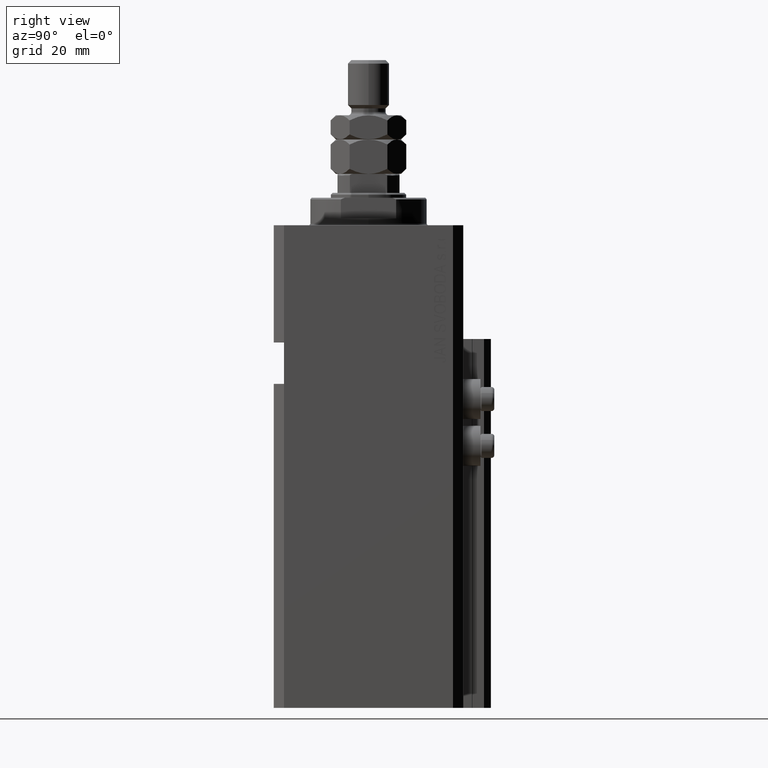
[diagram: clean part render]
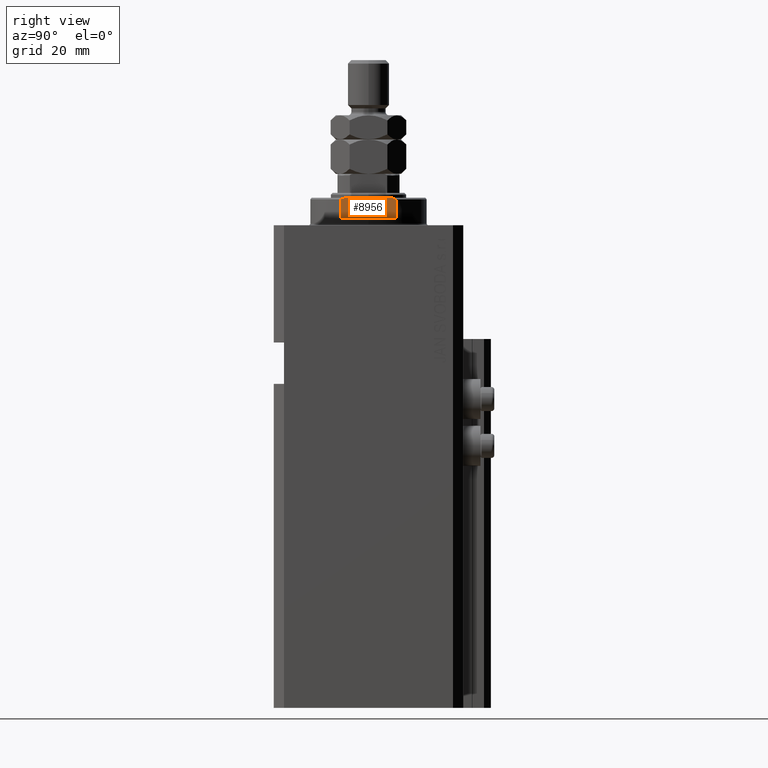
[diagram: same view with one face highlighted and labeled with its STEP entity id]
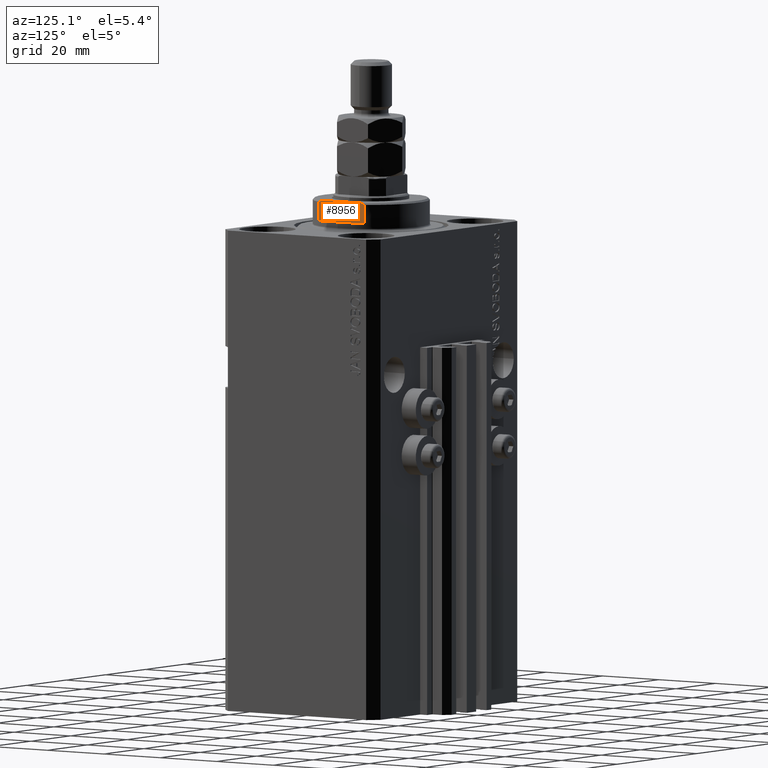
[diagram: same view with one face highlighted and labeled with its STEP entity id]
A machine part, right view. The second image highlights one B-rep face of the part: STEP entity #8956.
A second angle (auxiliary view) of the same face is appended — the face is thin or edge-on in the first view.
In plain terms, the highlighted planar face has unit normal (-1, 0, 0).
Its self-contained STEP definition (entity closure, byte-faithful):
#849 = VECTOR ( 'NONE', #45994, 1000.000000000000000 ) ;
#1165 = CARTESIAN_POINT ( 'NONE',  ( -15.00000000000000000, 7.628315461082486593, -7.674910371255312391 ) ) ;
#3907 = ORIENTED_EDGE ( 'NONE', *, *, #44734, .F. ) ;
#4105 = CARTESIAN_POINT ( 'NONE',  ( -15.00000000000000000, -42.42640687119285303, -2.000000000000000000 ) ) ;
#4264 = DIRECTION ( 'NONE',  ( -0.000000000000000000, -1.000000000000000000, -0.000000000000000000 ) ) ;
#7397 = VERTEX_POINT ( 'NONE', #42785 ) ;
#7530 = PLANE ( 'NONE',  #34820 ) ;
#7675 = VERTEX_POINT ( 'NONE', #15199 ) ;
#8956 = ADVANCED_FACE ( 'NONE', ( #33730 ), #7530, .F. ) ;
#8977 = DIRECTION ( 'NONE',  ( 0.000000000000000000, 0.000000000000000000, -1.000000000000000000 ) ) ;
#9277 = LINE ( 'NONE', #46240, #849 ) ;
#11673 = DIRECTION ( 'NONE',  ( 0.000000000000000000, 0.000000000000000000, -1.000000000000000000 ) ) ;
#12678 = ORIENTED_EDGE ( 'NONE', *, *, #19427, .T. ) ;
#13994 = CARTESIAN_POINT ( 'NONE',  ( -15.00000000000000000, 8.000000000000001776, -7.500000000000013323 ) ) ;
#14379 = CARTESIAN_POINT ( 'NONE',  ( -15.00000000000000000, -42.42640687119285303, -8.000000000000000000 ) ) ;
#14672 = CARTESIAN_POINT ( 'NONE',  ( -14.99999999999999645, 6.873863542433781504, -8.000000000000000000 ) ) ;
#14898 = CARTESIAN_POINT ( 'NONE',  ( -15.00000000000000000, -7.629305121525818301, -7.674444648693746984 ) ) ;
#15199 = CARTESIAN_POINT ( 'NONE',  ( -15.00000000000000000, -6.873863542433783280, -8.000000000000000000 ) ) ;
#16293 = CARTESIAN_POINT ( 'NONE',  ( -14.99999999999999645, 8.000000000000003553, -2.000000000000000000 ) ) ;
#18557 = EDGE_LOOP ( 'NONE', ( #28034, #39224, #12678, #3907, #42310, #43860 ) ) ;
#18863 = VERTEX_POINT ( 'NONE', #30510 ) ;
#18954 = LINE ( 'NONE', #33419, #28921 ) ;
#19427 = EDGE_CURVE ( 'NONE', #7675, #18863, #21248, .T. ) ;
#21248 = B_SPLINE_CURVE_WITH_KNOTS ( 'NONE', 3,
 ( #44527, #33288, #14898, #36712 ),
 .UNSPECIFIED., .F., .F.,
 ( 4, 4 ),
 ( 0.04875332532859062012, 0.04998905627745663799 ),
 .UNSPECIFIED. ) ;
#21727 = LINE ( 'NONE', #14379, #44094 ) ;
#21918 = VECTOR ( 'NONE', #8977, 1000.000000000000000 ) ;
#25616 = EDGE_CURVE ( 'NONE', #27973, #35973, #37245, .T. ) ;
#27588 = CARTESIAN_POINT ( 'NONE',  ( -15.00000000000000000, 8.000000000000001776, -7.500000000000013323 ) ) ;
#27973 = VERTEX_POINT ( 'NONE', #13994 ) ;
#28034 = ORIENTED_EDGE ( 'NONE', *, *, #25616, .T. ) ;
#28921 = VECTOR ( 'NONE', #4264, 1000.000000000000000 ) ;
#30510 = CARTESIAN_POINT ( 'NONE',  ( -15.00000000000000000, -8.000000000000001776, -7.500000000000014211 ) ) ;
#31760 = CARTESIAN_POINT ( 'NONE',  ( -15.00000000000000000, 7.253126193285940104, -7.842000017654667587 ) ) ;
#32797 = EDGE_CURVE ( 'NONE', #35973, #7675, #21727, .T. ) ;
#33288 = CARTESIAN_POINT ( 'NONE',  ( -15.00000000000000000, -7.254193676168139149, -7.841555306644512058 ) ) ;
#33419 = CARTESIAN_POINT ( 'NONE',  ( -15.00000000000000000, -42.42640687119285303, -2.000000000000000000 ) ) ;
#33730 = FACE_OUTER_BOUND ( 'NONE', #18557, .T. ) ;
#34820 = AXIS2_PLACEMENT_3D ( 'NONE', #4105, #37393, #11673 ) ;
#35430 = CARTESIAN_POINT ( 'NONE',  ( -14.99999999999999645, 6.873863542433781504, -8.000000000000000000 ) ) ;
#35973 = VERTEX_POINT ( 'NONE', #14672 ) ;
#36669 = DIRECTION ( 'NONE',  ( -0.000000000000000000, -1.000000000000000000, -0.000000000000000000 ) ) ;
#36712 = CARTESIAN_POINT ( 'NONE',  ( -15.00000000000000000, -8.000000000000001776, -7.500000000000014211 ) ) ;
#37161 = LINE ( 'NONE', #41798, #21918 ) ;
#37245 = B_SPLINE_CURVE_WITH_KNOTS ( 'NONE', 3,
 ( #27588, #1165, #31760, #35430 ),
 .UNSPECIFIED., .F., .F.,
 ( 4, 4 ),
 ( 0.03336039268697044147, 0.03459498301323848946 ),
 .UNSPECIFIED. ) ;
#37393 = DIRECTION ( 'NONE',  ( 1.000000000000000000, 0.000000000000000000, 0.000000000000000000 ) ) ;
#39224 = ORIENTED_EDGE ( 'NONE', *, *, #32797, .T. ) ;
#39904 = VERTEX_POINT ( 'NONE', #16293 ) ;
#41798 = CARTESIAN_POINT ( 'NONE',  ( -15.00000000000000000, -8.000000000000001776, -8.000000000000000000 ) ) ;
#42310 = ORIENTED_EDGE ( 'NONE', *, *, #43236, .F. ) ;
#42785 = CARTESIAN_POINT ( 'NONE',  ( -14.99999999999999645, -8.000000000000003553, -2.000000000000000000 ) ) ;
#43236 = EDGE_CURVE ( 'NONE', #39904, #7397, #18954, .T. ) ;
#43860 = ORIENTED_EDGE ( 'NONE', *, *, #45834, .F. ) ;
#44094 = VECTOR ( 'NONE', #36669, 1000.000000000000000 ) ;
#44527 = CARTESIAN_POINT ( 'NONE',  ( -15.00000000000000000, -6.873863542433783280, -8.000000000000000000 ) ) ;
#44734 = EDGE_CURVE ( 'NONE', #7397, #18863, #37161, .T. ) ;
#45834 = EDGE_CURVE ( 'NONE', #27973, #39904, #9277, .T. ) ;
#45994 = DIRECTION ( 'NONE',  ( -0.000000000000000000, -0.000000000000000000, 1.000000000000000000 ) ) ;
#46240 = CARTESIAN_POINT ( 'NONE',  ( -15.00000000000000000, 8.000000000000001776, -8.000000000000000000 ) ) ;